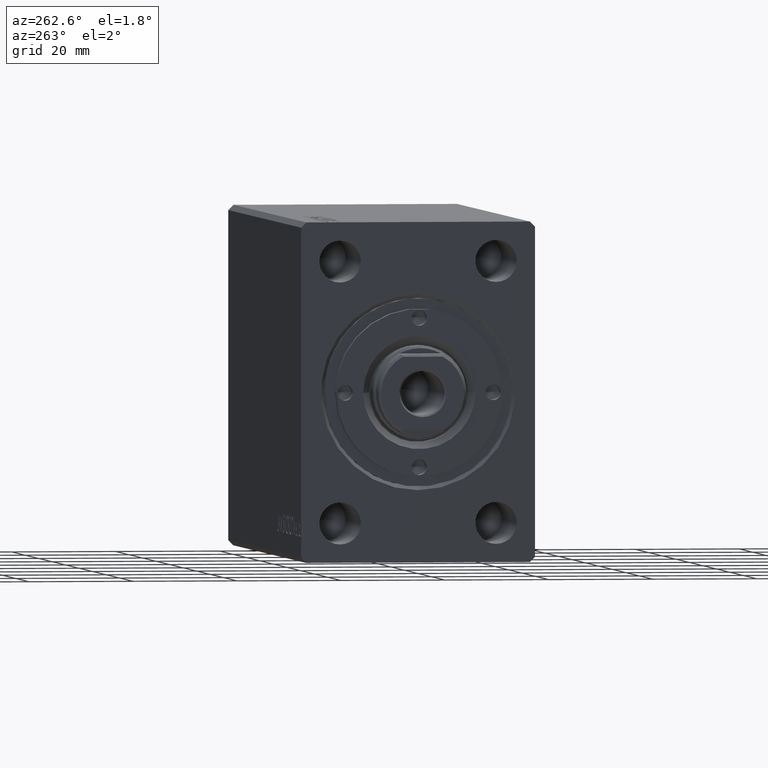
[diagram: clean part render]
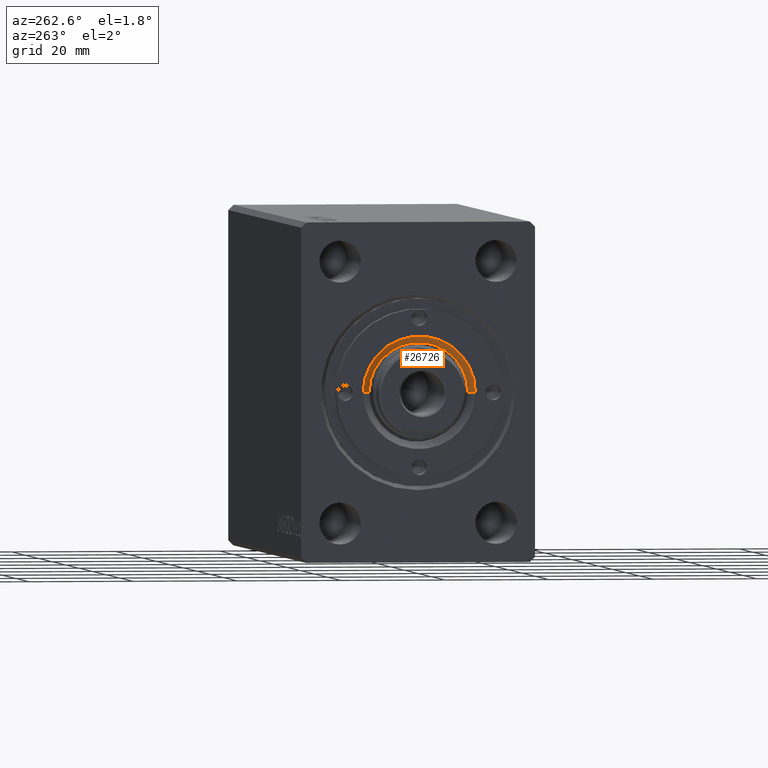
[diagram: same view with one face highlighted and labeled with its STEP entity id]
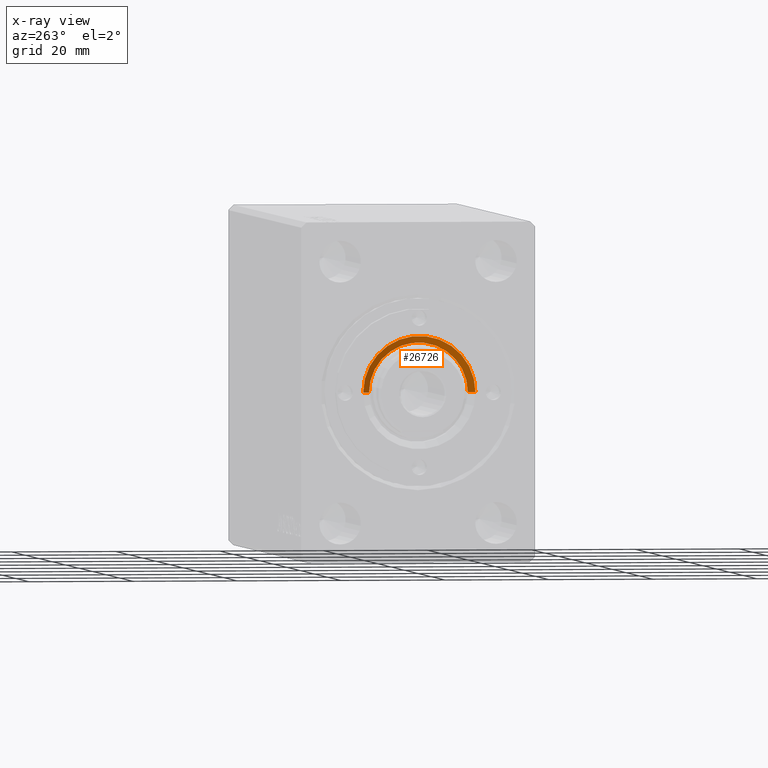
[diagram: x-ray of the same camera — body ghosted, the highlighted face saturated]
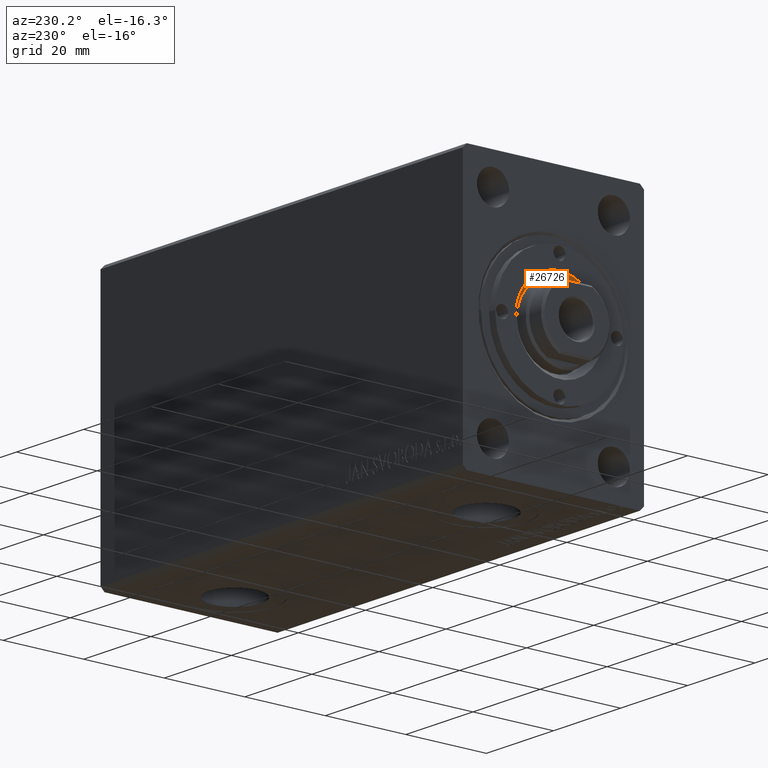
[diagram: same view with one face highlighted and labeled with its STEP entity id]
A machine part, auxiliary view. The second image highlights one B-rep face of the part: STEP entity #26726.
The next image is the same camera in x-ray: the body ghosted, the highlighted face saturated — about 0% of this face is hidden behind the body in this view.
A second angle (auxiliary view) of the same face is appended — the face is thin or edge-on in the first view.
In plain terms, the highlighted conical surface has half-angle 45 deg.
Its self-contained STEP definition (entity closure, byte-faithful):
#115 = VERTEX_POINT ( 'NONE', #22838 ) ;
#1479 = DIRECTION ( 'NONE',  ( 0.7071067811865512365, 0.000000000000000000, 0.7071067811865439090 ) ) ;
#1525 = VECTOR ( 'NONE', #23266, 1000.000000000000000 ) ;
#1559 = ORIENTED_EDGE ( 'NONE', *, *, #23851, .F. ) ;
#1685 = DIRECTION ( 'NONE',  ( 0.000000000000000000, 0.000000000000000000, 1.000000000000000000 ) ) ;
#3467 = VERTEX_POINT ( 'NONE', #29644 ) ;
#5011 = VECTOR ( 'NONE', #1479, 1000.000000000000000 ) ;
#6907 = EDGE_CURVE ( 'NONE', #30527, #3467, #24901, .T. ) ;
#8129 = FACE_OUTER_BOUND ( 'NONE', #28691, .T. ) ;
#9186 = EDGE_CURVE ( 'NONE', #36650, #30527, #34542, .T. ) ;
#10529 = AXIS2_PLACEMENT_3D ( 'NONE', #37084, #20095, #33740 ) ;
#11023 = CARTESIAN_POINT ( 'NONE',  ( 10.79999999999997584, 0.000000000000000000, 6.999999999999999112 ) ) ;
#11933 = DIRECTION ( 'NONE',  ( -0.000000000000000000, -0.000000000000000000, -1.000000000000000000 ) ) ;
#14400 = CARTESIAN_POINT ( 'NONE',  ( 0.000000000000000000, 0.000000000000000000, 6.999999999999999112 ) ) ;
#15891 = ORIENTED_EDGE ( 'NONE', *, *, #6907, .F. ) ;
#19089 = CIRCLE ( 'NONE', #10529, 9.500000000000000000 ) ;
#19700 = CARTESIAN_POINT ( 'NONE',  ( -8.999999999999957367, 1.102182119232612784E-15, 5.200000000000000178 ) ) ;
#20095 = DIRECTION ( 'NONE',  ( 0.000000000000000000, 0.000000000000000000, 1.000000000000000000 ) ) ;
#22838 = CARTESIAN_POINT ( 'NONE',  ( -9.500000000000000000, 1.163414459189985485E-15, 5.700000000000036593 ) ) ;
#23051 = LINE ( 'NONE', #19700, #1525 ) ;
#23266 = DIRECTION ( 'NONE',  ( -0.7071067811865512365, 8.659560562354979697E-17, 0.7071067811865439090 ) ) ;
#23851 = EDGE_CURVE ( 'NONE', #115, #36650, #19089, .T. ) ;
#24901 = CIRCLE ( 'NONE', #37769, 10.79999999999997584 ) ;
#26726 = ADVANCED_FACE ( 'NONE', ( #8129 ), #40380, .F. ) ;
#27774 = CARTESIAN_POINT ( 'NONE',  ( 9.500000000000000000, 0.000000000000000000, 5.700000000000036593 ) ) ;
#28329 = ORIENTED_EDGE ( 'NONE', *, *, #41027, .T. ) ;
#28691 = EDGE_LOOP ( 'NONE', ( #1559, #28329, #15891, #43959 ) ) ;
#28704 = DIRECTION ( 'NONE',  ( 1.000000000000000000, 0.000000000000000000, 0.000000000000000000 ) ) ;
#29644 = CARTESIAN_POINT ( 'NONE',  ( -10.79999999999997584, 1.322618543079138535E-15, 6.999999999999999112 ) ) ;
#30527 = VERTEX_POINT ( 'NONE', #11023 ) ;
#31607 = DIRECTION ( 'NONE',  ( 1.000000000000000000, 0.000000000000000000, 0.000000000000000000 ) ) ;
#33740 = DIRECTION ( 'NONE',  ( 1.000000000000000000, 0.000000000000000000, 0.000000000000000000 ) ) ;
#34542 = LINE ( 'NONE', #38982, #5011 ) ;
#36650 = VERTEX_POINT ( 'NONE', #27774 ) ;
#37084 = CARTESIAN_POINT ( 'NONE',  ( 0.000000000000000000, 0.000000000000000000, 5.700000000000036593 ) ) ;
#37769 = AXIS2_PLACEMENT_3D ( 'NONE', #14400, #11933, #28704 ) ;
#38311 = CARTESIAN_POINT ( 'NONE',  ( 0.000000000000000000, 0.000000000000000000, 5.200000000000000178 ) ) ;
#38982 = CARTESIAN_POINT ( 'NONE',  ( 8.999999999999957367, 0.000000000000000000, 5.200000000000000178 ) ) ;
#40380 = CONICAL_SURFACE ( 'NONE', #42490, 8.999999999999957367, 0.7853981633974533860 ) ;
#41027 = EDGE_CURVE ( 'NONE', #115, #3467, #23051, .T. ) ;
#42490 = AXIS2_PLACEMENT_3D ( 'NONE', #38311, #1685, #31607 ) ;
#43959 = ORIENTED_EDGE ( 'NONE', *, *, #9186, .F. ) ;